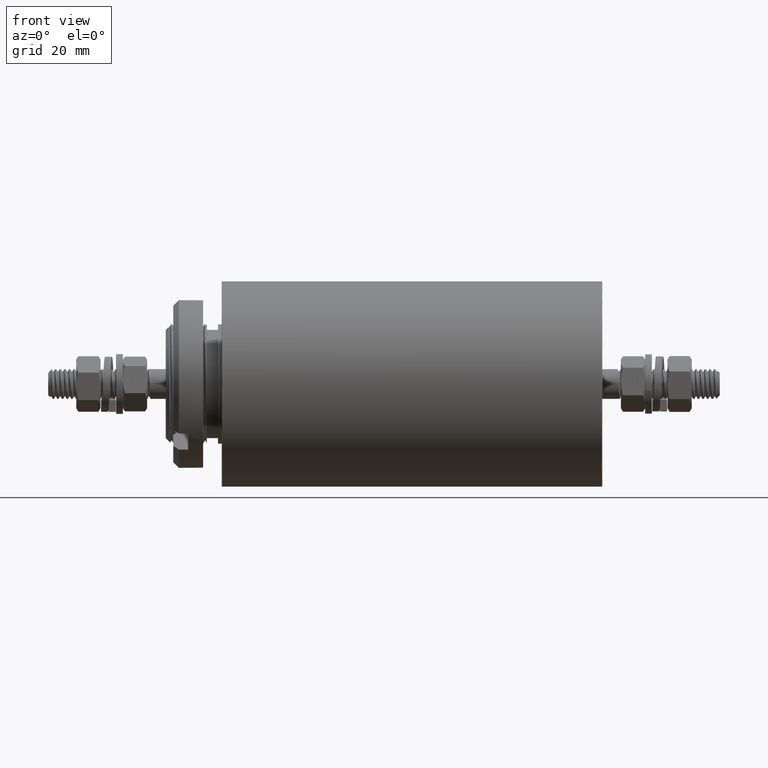
[diagram: clean part render]
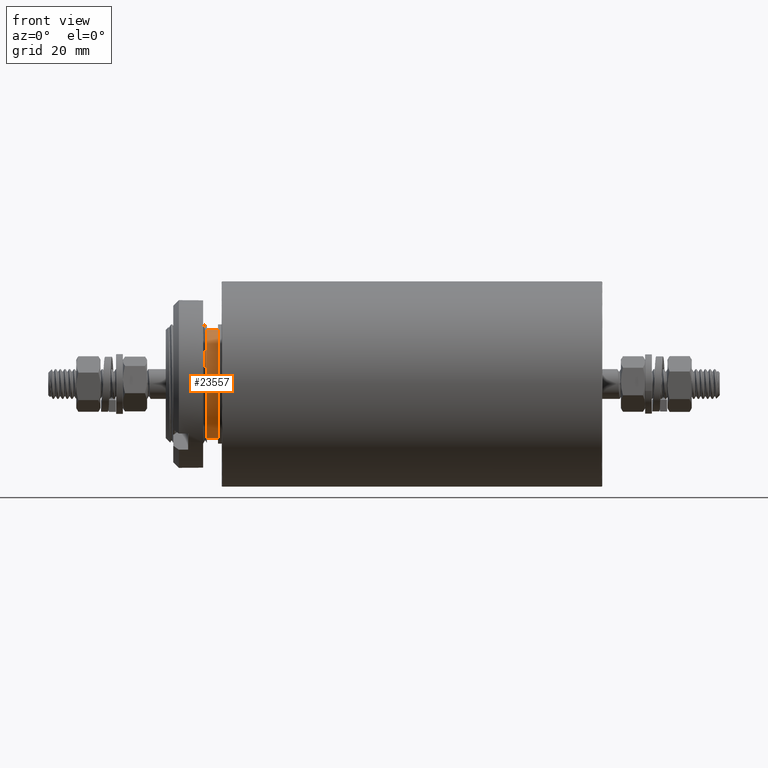
[diagram: same view with one face highlighted and labeled with its STEP entity id]
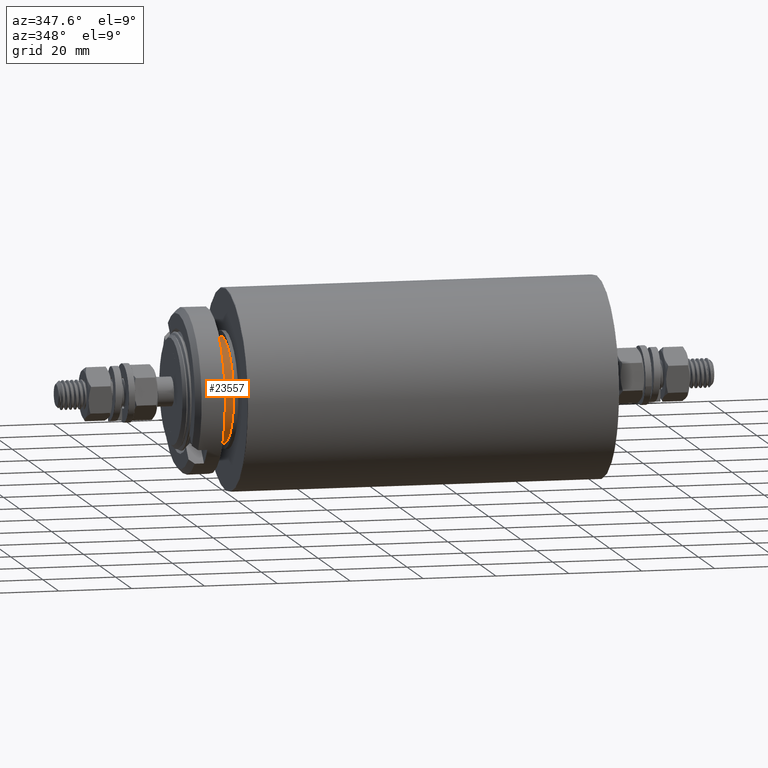
[diagram: same view with one face highlighted and labeled with its STEP entity id]
A machine part, front view. The second image highlights one B-rep face of the part: STEP entity #23557.
A second angle (auxiliary view) of the same face is appended — the face is thin or edge-on in the first view.
In plain terms, the highlighted cylindrical surface (partial cylindrical patch) has radius 14.5 mm, axis along (1, 0, 0).
Its self-contained STEP definition (entity closure, byte-faithful):
#413 = AXIS2_PLACEMENT_3D ( 'NONE', #10482, #8167, #10610 ) ;
#1750 = AXIS2_PLACEMENT_3D ( 'NONE', #6878, #20471, #22279 ) ;
#2539 = CARTESIAN_POINT ( 'NONE',  ( -4.000000000000003553, 0.000000000000000000, 0.000000000000000000 ) ) ;
#3724 = CIRCLE ( 'NONE', #413, 14.50000000000000000 ) ;
#4375 = EDGE_CURVE ( 'NONE', #5486, #14575, #11924, .T. ) ;
#5486 = VERTEX_POINT ( 'NONE', #21286 ) ;
#6355 = LINE ( 'NONE', #19829, #9941 ) ;
#6878 = CARTESIAN_POINT ( 'NONE',  ( 102.0000000000000000, 0.000000000000000000, 0.000000000000000000 ) ) ;
#7622 = ORIENTED_EDGE ( 'NONE', *, *, #4375, .T. ) ;
#8167 = DIRECTION ( 'NONE',  ( 1.000000000000000000, -0.000000000000000000, -0.000000000000000000 ) ) ;
#8556 = CYLINDRICAL_SURFACE ( 'NONE', #1750, 14.50000000000000000 ) ;
#9476 = AXIS2_PLACEMENT_3D ( 'NONE', #2539, #19974, #23848 ) ;
#9661 = EDGE_CURVE ( 'NONE', #14575, #13185, #21284, .T. ) ;
#9941 = VECTOR ( 'NONE', #16219, 1000.000000000000000 ) ;
#10004 = DIRECTION ( 'NONE',  ( 1.000000000000000000, -0.000000000000000000, -0.000000000000000000 ) ) ;
#10028 = VERTEX_POINT ( 'NONE', #15878 ) ;
#10482 = CARTESIAN_POINT ( 'NONE',  ( -1.000000000000000888, 0.000000000000000000, 0.000000000000000000 ) ) ;
#10500 = FACE_OUTER_BOUND ( 'NONE', #16464, .T. ) ;
#10610 = DIRECTION ( 'NONE',  ( 0.000000000000000000, 0.000000000000000000, -1.000000000000000000 ) ) ;
#10731 = EDGE_CURVE ( 'NONE', #5486, #10028, #6355, .T. ) ;
#11924 = CIRCLE ( 'NONE', #9476, 14.50000000000000000 ) ;
#13185 = VERTEX_POINT ( 'NONE', #19062 ) ;
#13497 = VECTOR ( 'NONE', #10004, 1000.000000000000000 ) ;
#14575 = VERTEX_POINT ( 'NONE', #18737 ) ;
#15878 = CARTESIAN_POINT ( 'NONE',  ( -1.000000000000000888, 1.775737858763662015E-15, 14.50000000000000000 ) ) ;
#16219 = DIRECTION ( 'NONE',  ( 1.000000000000000000, -0.000000000000000000, -0.000000000000000000 ) ) ;
#16464 = EDGE_LOOP ( 'NONE', ( #18126, #7622, #18213, #22181 ) ) ;
#17700 = EDGE_CURVE ( 'NONE', #10028, #13185, #3724, .T. ) ;
#18126 = ORIENTED_EDGE ( 'NONE', *, *, #10731, .F. ) ;
#18213 = ORIENTED_EDGE ( 'NONE', *, *, #9661, .T. ) ;
#18737 = CARTESIAN_POINT ( 'NONE',  ( -4.000000000000003553, 0.000000000000000000, -14.50000000000000000 ) ) ;
#19062 = CARTESIAN_POINT ( 'NONE',  ( -1.000000000000000888, 0.000000000000000000, -14.50000000000000000 ) ) ;
#19829 = CARTESIAN_POINT ( 'NONE',  ( 102.0000000000000000, 1.775737858763662015E-15, 14.50000000000000000 ) ) ;
#19974 = DIRECTION ( 'NONE',  ( 1.000000000000000000, -0.000000000000000000, -0.000000000000000000 ) ) ;
#20471 = DIRECTION ( 'NONE',  ( 1.000000000000000000, -0.000000000000000000, -0.000000000000000000 ) ) ;
#21159 = CARTESIAN_POINT ( 'NONE',  ( 102.0000000000000000, 0.000000000000000000, -14.50000000000000000 ) ) ;
#21284 = LINE ( 'NONE', #21159, #13497 ) ;
#21286 = CARTESIAN_POINT ( 'NONE',  ( -4.000000000000003553, 1.775737858763662015E-15, 14.50000000000000000 ) ) ;
#22181 = ORIENTED_EDGE ( 'NONE', *, *, #17700, .F. ) ;
#22279 = DIRECTION ( 'NONE',  ( 0.000000000000000000, 0.000000000000000000, -1.000000000000000000 ) ) ;
#23557 = ADVANCED_FACE ( 'NONE', ( #10500 ), #8556, .T. ) ;
#23848 = DIRECTION ( 'NONE',  ( 0.000000000000000000, 0.000000000000000000, -1.000000000000000000 ) ) ;